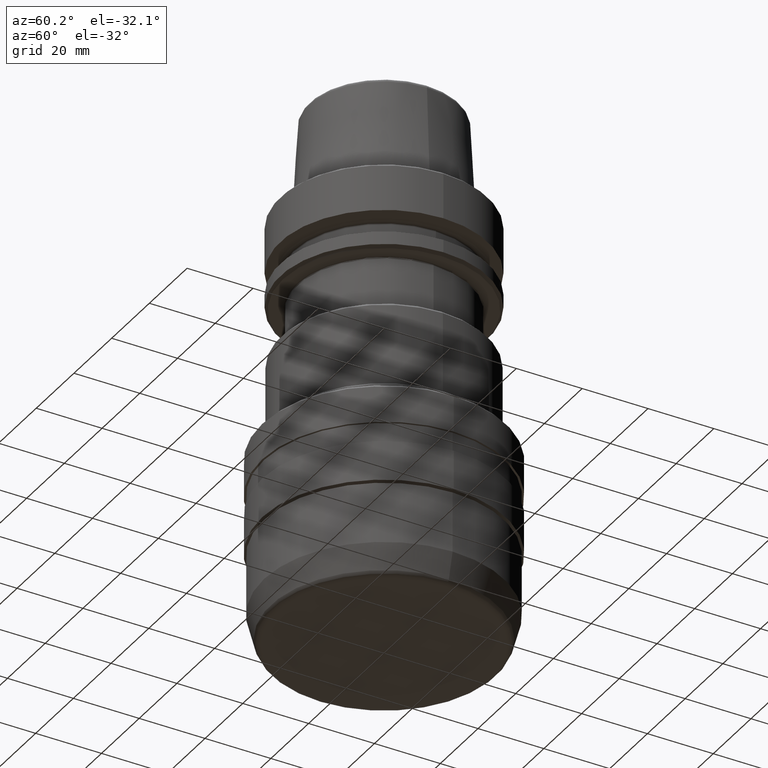
[diagram: clean part render]
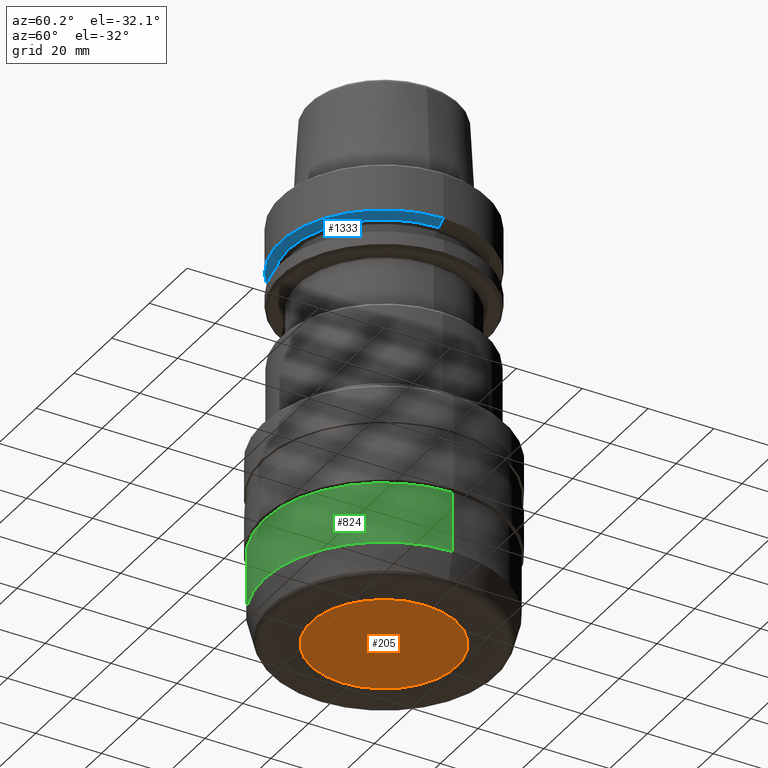
[diagram: same view with three faces highlighted in distinct colors, each labeled with its STEP entity id]
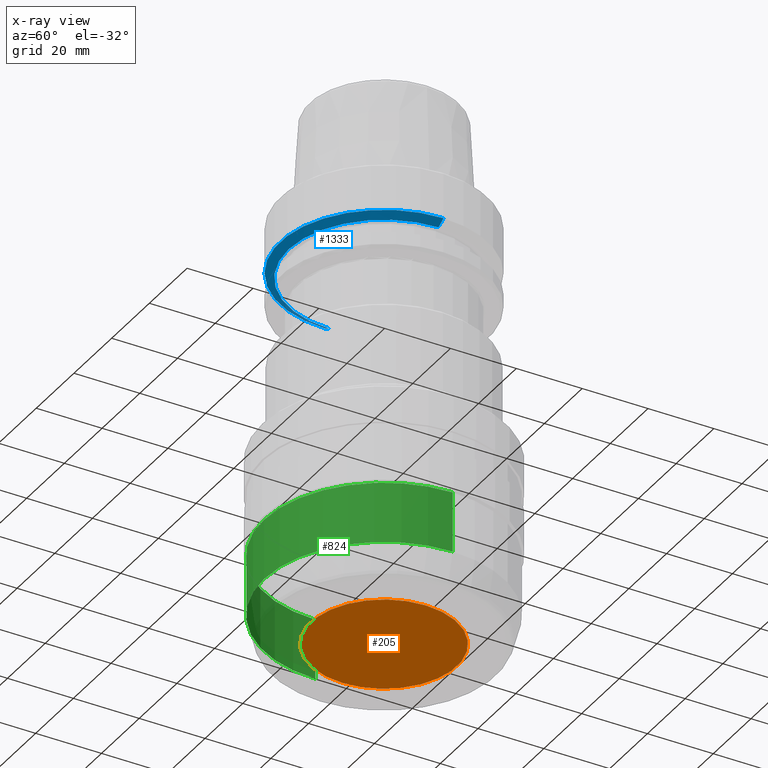
[diagram: x-ray of the same camera — body ghosted, the three highlighted faces saturated]
A machine part, auxiliary view with three faces highlighted in distinct colors.
The next image is the same camera in x-ray (body ghosted, the three faces saturated) — at least one of them is partly hidden behind the body in this view.
Their STEP definitions:

[orange] entity #205 — the highlighted planar face has unit normal (0, 0, -1).
#3 = DIRECTION ( 'NONE',  ( 1.000000000000000000, 0.0000000000000000000, 0.0000000000000000000 ) ) ;
#10 = PLANE ( 'NONE',  #1550 ) ;
#67 = VERTEX_POINT ( 'NONE', #1545 ) ;
#186 = DIRECTION ( 'NONE',  ( -1.000000000000000000, 0.0000000000000000000, -0.0000000000000000000 ) ) ;
#205 = ADVANCED_FACE ( 'NONE', ( #578 ), #10, .T. ) ;
#223 = CIRCLE ( 'NONE', #1036, 22.14999999999245300 ) ;
#240 = EDGE_CURVE ( 'NONE', #67, #1923, #898, .T. ) ;
#479 = DIRECTION ( 'NONE',  ( 0.0000000000000000000, 0.0000000000000000000, -1.000000000000000000 ) ) ;
#576 = DIRECTION ( 'NONE',  ( -0.0000000000000000000, -0.0000000000000000000, 1.000000000000000000 ) ) ;
#578 = FACE_OUTER_BOUND ( 'NONE', #1230, .T. ) ;
#735 = DIRECTION ( 'NONE',  ( 1.000000000000000000, 0.0000000000000000000, 0.0000000000000000000 ) ) ;
#848 = DIRECTION ( 'NONE',  ( -0.0000000000000000000, -0.0000000000000000000, 1.000000000000000000 ) ) ;
#898 = CIRCLE ( 'NONE', #1864, 22.14999999999245300 ) ;
#905 = CARTESIAN_POINT ( 'NONE',  ( 0.0000000000000000000, 0.0000000000000000000, -130.0000000000071100 ) ) ;
#1036 = AXIS2_PLACEMENT_3D ( 'NONE', #1566, #576, #3 ) ;
#1039 = CARTESIAN_POINT ( 'NONE',  ( -22.14999999999245300, 2.714284632749478400E-015, -130.0000000000071100 ) ) ;
#1230 = EDGE_LOOP ( 'NONE', ( #1430, #1524 ) ) ;
#1261 = EDGE_CURVE ( 'NONE', #1923, #67, #223, .T. ) ;
#1430 = ORIENTED_EDGE ( 'NONE', *, *, #240, .F. ) ;
#1524 = ORIENTED_EDGE ( 'NONE', *, *, #1261, .F. ) ;
#1545 = CARTESIAN_POINT ( 'NONE',  ( 22.14999999999245300, 0.0000000000000000000, -130.0000000000071100 ) ) ;
#1550 = AXIS2_PLACEMENT_3D ( 'NONE', #1792, #479, #186 ) ;
#1566 = CARTESIAN_POINT ( 'NONE',  ( 0.0000000000000000000, 0.0000000000000000000, -130.0000000000071100 ) ) ;
#1792 = CARTESIAN_POINT ( 'NONE',  ( 0.0000000000000000000, 0.0000000000000000000, -130.0000000000071100 ) ) ;
#1864 = AXIS2_PLACEMENT_3D ( 'NONE', #905, #848, #735 ) ;
#1923 = VERTEX_POINT ( 'NONE', #1039 ) ;

[blue] entity #1333 — the highlighted conical surface has half-angle 60 deg.
#34 = AXIS2_PLACEMENT_3D ( 'NONE', #1504, #1826, #197 ) ;
#79 = CARTESIAN_POINT ( 'NONE',  ( 0.0000000000000000000, 0.0000000000000000000, -16.10000000000068400 ) ) ;
#89 = ORIENTED_EDGE ( 'NONE', *, *, #511, .F. ) ;
#147 = ORIENTED_EDGE ( 'NONE', *, *, #1330, .T. ) ;
#197 = DIRECTION ( 'NONE',  ( 1.000000000000000000, 0.0000000000000000000, 0.0000000000000000000 ) ) ;
#263 = DIRECTION ( 'NONE',  ( 1.000000000000000000, 0.0000000000000000000, 0.0000000000000000000 ) ) ;
#284 = AXIS2_PLACEMENT_3D ( 'NONE', #383, #1783, #1670 ) ;
#287 = AXIS2_PLACEMENT_3D ( 'NONE', #79, #1186, #263 ) ;
#330 = CARTESIAN_POINT ( 'NONE',  ( 31.49999999999986100, 0.0000000000000000000, -14.62250092524054800 ) ) ;
#366 = VECTOR ( 'NONE', #1432, 1000.000000000000000 ) ;
#383 = CARTESIAN_POINT ( 'NONE',  ( 0.0000000000000000000, 0.0000000000000000000, -14.62250092524054800 ) ) ;
#477 = EDGE_CURVE ( 'NONE', #1204, #1933, #1832, .T. ) ;
#511 = EDGE_CURVE ( 'NONE', #1933, #1625, #1536, .T. ) ;
#569 = EDGE_LOOP ( 'NONE', ( #1570, #1913, #147, #89 ) ) ;
#647 = VERTEX_POINT ( 'NONE', #873 ) ;
#783 = LINE ( 'NONE', #1332, #366 ) ;
#785 = DIRECTION ( 'NONE',  ( -0.8660254037844328200, 1.060575238724899800E-016, 0.5000000000000101000 ) ) ;
#873 = CARTESIAN_POINT ( 'NONE',  ( 28.94089653437937000, 0.0000000000000000000, -16.10000000000068400 ) ) ;
#967 = VECTOR ( 'NONE', #785, 1000.000000000000000 ) ;
#1151 = CARTESIAN_POINT ( 'NONE',  ( -28.94089653437937000, 3.700937523921194300E-015, -16.10000000000068400 ) ) ;
#1186 = DIRECTION ( 'NONE',  ( -0.0000000000000000000, -0.0000000000000000000, 1.000000000000000000 ) ) ;
#1204 = VERTEX_POINT ( 'NONE', #1151 ) ;
#1211 = FACE_OUTER_BOUND ( 'NONE', #569, .T. ) ;
#1267 = CARTESIAN_POINT ( 'NONE',  ( -31.49999999999986100, 3.857637417314145300E-015, -14.62250092524054800 ) ) ;
#1330 = EDGE_CURVE ( 'NONE', #647, #1625, #783, .T. ) ;
#1332 = CARTESIAN_POINT ( 'NONE',  ( 31.49999999999986100, 0.0000000000000000000, -14.62250092524054800 ) ) ;
#1333 = ADVANCED_FACE ( 'NONE', ( #1211 ), #1976, .T. ) ;
#1382 = CARTESIAN_POINT ( 'NONE',  ( -31.49999999999986100, 3.857637417314145300E-015, -14.62250092524054800 ) ) ;
#1410 = CIRCLE ( 'NONE', #287, 28.94089653437937000 ) ;
#1432 = DIRECTION ( 'NONE',  ( 0.8660254037844328200, 0.0000000000000000000, 0.5000000000000101000 ) ) ;
#1504 = CARTESIAN_POINT ( 'NONE',  ( 0.0000000000000000000, 0.0000000000000000000, -14.62250092524054800 ) ) ;
#1536 = CIRCLE ( 'NONE', #284, 31.49999999999986100 ) ;
#1570 = ORIENTED_EDGE ( 'NONE', *, *, #477, .F. ) ;
#1625 = VERTEX_POINT ( 'NONE', #330 ) ;
#1670 = DIRECTION ( 'NONE',  ( 1.000000000000000000, 0.0000000000000000000, 0.0000000000000000000 ) ) ;
#1743 = EDGE_CURVE ( 'NONE', #1204, #647, #1410, .T. ) ;
#1783 = DIRECTION ( 'NONE',  ( -0.0000000000000000000, -0.0000000000000000000, 1.000000000000000000 ) ) ;
#1826 = DIRECTION ( 'NONE',  ( -0.0000000000000000000, -0.0000000000000000000, 1.000000000000000000 ) ) ;
#1832 = LINE ( 'NONE', #1267, #967 ) ;
#1913 = ORIENTED_EDGE ( 'NONE', *, *, #1743, .T. ) ;
#1933 = VERTEX_POINT ( 'NONE', #1382 ) ;
#1976 = CONICAL_SURFACE ( 'NONE', #34, 31.49999999999986100, 1.047197551196586100 ) ;

[green] entity #824 — the highlighted cylindrical surface (partial cylindrical patch) has radius 36.4 mm, axis along (-0, -0, 1).
#7 = VECTOR ( 'NONE', #600, 1000.000000000000000 ) ;
#58 = CARTESIAN_POINT ( 'NONE',  ( -36.39999999999888300, 4.457714348896229400E-015, -120.9987247429033800 ) ) ;
#59 = LINE ( 'NONE', #550, #7 ) ;
#114 = DIRECTION ( 'NONE',  ( -0.0000000000000000000, -0.0000000000000000000, 1.000000000000000000 ) ) ;
#140 = CARTESIAN_POINT ( 'NONE',  ( 0.0000000000000000000, 0.0000000000000000000, -120.9987247429033800 ) ) ;
#196 = EDGE_LOOP ( 'NONE', ( #1454, #995, #1688, #1218 ) ) ;
#354 = EDGE_CURVE ( 'NONE', #1602, #948, #1171, .T. ) ;
#367 = CARTESIAN_POINT ( 'NONE',  ( 36.39999999999888300, 0.0000000000000000000, -120.9987247429033800 ) ) ;
#531 = AXIS2_PLACEMENT_3D ( 'NONE', #140, #759, #1971 ) ;
#550 = CARTESIAN_POINT ( 'NONE',  ( -36.39999999999887600, 4.457714348896228600E-015, 62.13557824885784700 ) ) ;
#596 = VECTOR ( 'NONE', #801, 1000.000000000000000 ) ;
#600 = DIRECTION ( 'NONE',  ( -0.0000000000000000000, -0.0000000000000000000, 1.000000000000000000 ) ) ;
#623 = VERTEX_POINT ( 'NONE', #1189 ) ;
#759 = DIRECTION ( 'NONE',  ( -0.0000000000000000000, -0.0000000000000000000, 1.000000000000000000 ) ) ;
#779 = EDGE_CURVE ( 'NONE', #948, #623, #1881, .T. ) ;
#801 = DIRECTION ( 'NONE',  ( -0.0000000000000000000, -0.0000000000000000000, 1.000000000000000000 ) ) ;
#817 = CARTESIAN_POINT ( 'NONE',  ( 0.0000000000000000000, 0.0000000000000000000, -102.5987247429005700 ) ) ;
#824 = ADVANCED_FACE ( 'NONE', ( #919 ), #1736, .T. ) ;
#887 = VERTEX_POINT ( 'NONE', #1035 ) ;
#919 = FACE_OUTER_BOUND ( 'NONE', #196, .T. ) ;
#948 = VERTEX_POINT ( 'NONE', #367 ) ;
#995 = ORIENTED_EDGE ( 'NONE', *, *, #354, .T. ) ;
#1005 = DIRECTION ( 'NONE',  ( 1.000000000000000000, 0.0000000000000000000, 0.0000000000000000000 ) ) ;
#1035 = CARTESIAN_POINT ( 'NONE',  ( -36.39999999999887600, 4.457714348896228600E-015, -102.5987247429005700 ) ) ;
#1157 = CARTESIAN_POINT ( 'NONE',  ( 0.0000000000000000000, 0.0000000000000000000, 62.13557824885784700 ) ) ;
#1171 = CIRCLE ( 'NONE', #531, 36.39999999999888300 ) ;
#1189 = CARTESIAN_POINT ( 'NONE',  ( 36.39999999999887600, 0.0000000000000000000, -102.5987247429005700 ) ) ;
#1199 = DIRECTION ( 'NONE',  ( 1.000000000000000000, 0.0000000000000000000, 0.0000000000000000000 ) ) ;
#1200 = AXIS2_PLACEMENT_3D ( 'NONE', #1157, #114, #1199 ) ;
#1218 = ORIENTED_EDGE ( 'NONE', *, *, #1313, .F. ) ;
#1257 = CIRCLE ( 'NONE', #1910, 36.39999999999887600 ) ;
#1313 = EDGE_CURVE ( 'NONE', #887, #623, #1257, .T. ) ;
#1454 = ORIENTED_EDGE ( 'NONE', *, *, #1546, .F. ) ;
#1546 = EDGE_CURVE ( 'NONE', #1602, #887, #59, .T. ) ;
#1596 = DIRECTION ( 'NONE',  ( -0.0000000000000000000, -0.0000000000000000000, 1.000000000000000000 ) ) ;
#1602 = VERTEX_POINT ( 'NONE', #58 ) ;
#1688 = ORIENTED_EDGE ( 'NONE', *, *, #779, .T. ) ;
#1736 = CYLINDRICAL_SURFACE ( 'NONE', #1200, 36.39999999999887600 ) ;
#1794 = CARTESIAN_POINT ( 'NONE',  ( 36.39999999999887600, 0.0000000000000000000, 62.13557824885784700 ) ) ;
#1881 = LINE ( 'NONE', #1794, #596 ) ;
#1910 = AXIS2_PLACEMENT_3D ( 'NONE', #817, #1596, #1005 ) ;
#1971 = DIRECTION ( 'NONE',  ( 1.000000000000000000, 0.0000000000000000000, 0.0000000000000000000 ) ) ;